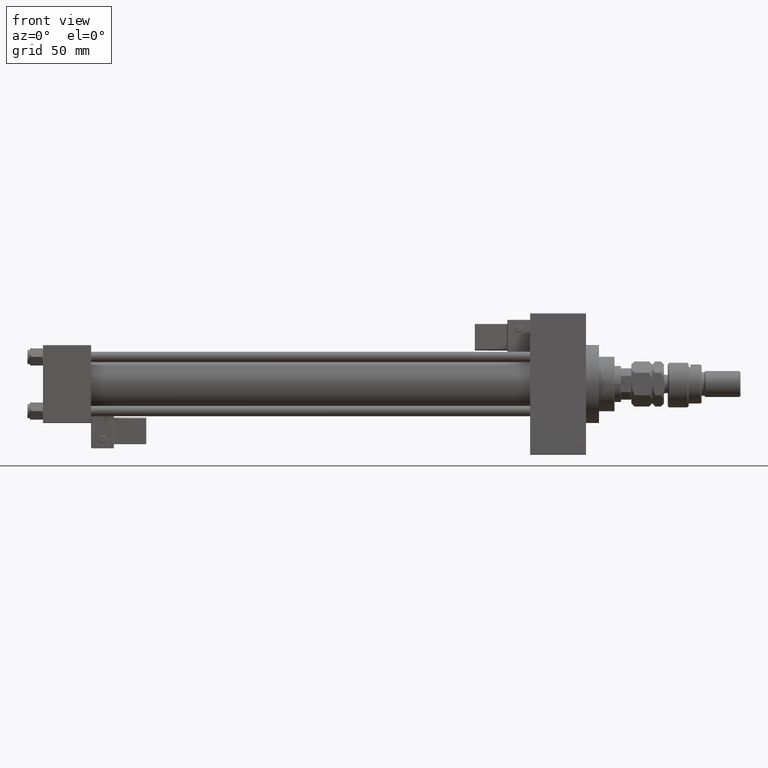
[diagram: clean part render]
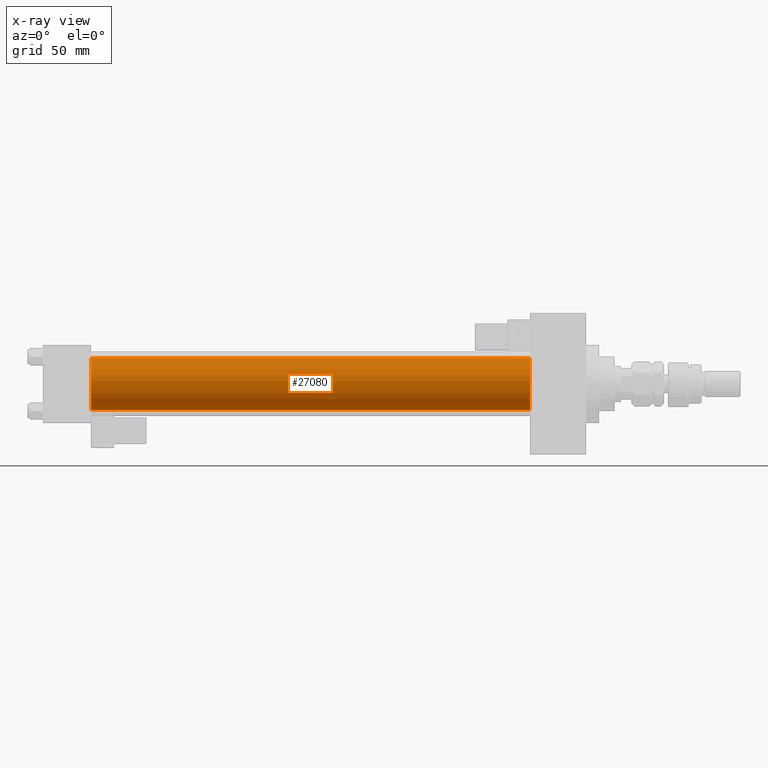
[diagram: x-ray — body ghosted, one internal face saturated and labeled with its STEP entity id]
A machine part, front view, then the same camera in x-ray: the body is ghosted and one INTERNAL B-rep face — a face not visible from any outside direction — is saturated and labeled: STEP entity #27080.
In plain terms, the highlighted cylindrical surface (edge-blend (fillet) strip) has radius 20 mm, axis along (-1, -0, -0).
Its self-contained STEP definition (entity closure, byte-faithful):
#415 = FACE_OUTER_BOUND ( 'NONE', #18806, .T. ) ;
#926 = CARTESIAN_POINT ( 'NONE',  ( 375.0000000000000000, -2.602085213965210642E-15, 0.000000000000000000 ) ) ;
#1138 = CARTESIAN_POINT ( 'NONE',  ( 375.0000000000000000, -2.602085213965210642E-15, 0.000000000000000000 ) ) ;
#2212 = AXIS2_PLACEMENT_3D ( 'NONE', #30229, #10032, #6019 ) ;
#4566 = AXIS2_PLACEMENT_3D ( 'NONE', #1138, #33298, #41535 ) ;
#5155 = DIRECTION ( 'NONE',  ( 0.000000000000000000, 0.000000000000000000, 1.000000000000000000 ) ) ;
#6019 = DIRECTION ( 'NONE',  ( 0.000000000000000000, 0.000000000000000000, -1.000000000000000000 ) ) ;
#7116 = VERTEX_POINT ( 'NONE', #46203 ) ;
#7144 = VECTOR ( 'NONE', #27718, 1000.000000000000000 ) ;
#7553 = CARTESIAN_POINT ( 'NONE',  ( 37.00000000000000000, -2.602085213965210642E-15, 20.00000000000000000 ) ) ;
#10032 = DIRECTION ( 'NONE',  ( 1.000000000000000000, 0.000000000000000000, 0.000000000000000000 ) ) ;
#11513 = EDGE_CURVE ( 'NONE', #7116, #22092, #44192, .T. ) ;
#12589 = VERTEX_POINT ( 'NONE', #25827 ) ;
#13336 = EDGE_CURVE ( 'NONE', #12589, #7116, #37758, .T. ) ;
#13391 = DIRECTION ( 'NONE',  ( -1.000000000000000000, -0.000000000000000000, -0.000000000000000000 ) ) ;
#13560 = ORIENTED_EDGE ( 'NONE', *, *, #11513, .T. ) ;
#15486 = VERTEX_POINT ( 'NONE', #7553 ) ;
#15749 = CARTESIAN_POINT ( 'NONE',  ( 375.0000000000000000, -1.527916156705042519E-16, -20.00000000000000000 ) ) ;
#15810 = DIRECTION ( 'NONE',  ( -1.000000000000000000, -0.000000000000000000, -0.000000000000000000 ) ) ;
#18743 = EDGE_CURVE ( 'NONE', #15486, #22092, #29343, .T. ) ;
#18806 = EDGE_LOOP ( 'NONE', ( #47403, #13560, #24048, #23711 ) ) ;
#22092 = VERTEX_POINT ( 'NONE', #23249 ) ;
#23249 = CARTESIAN_POINT ( 'NONE',  ( 37.00000000000000000, -1.527916156705042519E-16, -20.00000000000000000 ) ) ;
#23711 = ORIENTED_EDGE ( 'NONE', *, *, #51796, .F. ) ;
#23788 = CARTESIAN_POINT ( 'NONE',  ( 375.0000000000000000, -2.602085213965210642E-15, 20.00000000000000000 ) ) ;
#24048 = ORIENTED_EDGE ( 'NONE', *, *, #18743, .F. ) ;
#25120 = CYLINDRICAL_SURFACE ( 'NONE', #45631, 20.00000000000000000 ) ;
#25827 = CARTESIAN_POINT ( 'NONE',  ( 375.0000000000000000, -2.602085213965210642E-15, 20.00000000000000000 ) ) ;
#27080 = ADVANCED_FACE ( 'NONE', ( #415 ), #25120, .F. ) ;
#27718 = DIRECTION ( 'NONE',  ( -1.000000000000000000, -0.000000000000000000, -0.000000000000000000 ) ) ;
#29343 = CIRCLE ( 'NONE', #2212, 20.00000000000000000 ) ;
#30229 = CARTESIAN_POINT ( 'NONE',  ( 37.00000000000000000, -2.602085213965210642E-15, 0.000000000000000000 ) ) ;
#33298 = DIRECTION ( 'NONE',  ( 1.000000000000000000, 0.000000000000000000, 0.000000000000000000 ) ) ;
#37758 = CIRCLE ( 'NONE', #4566, 20.00000000000000000 ) ;
#41535 = DIRECTION ( 'NONE',  ( 0.000000000000000000, 0.000000000000000000, -1.000000000000000000 ) ) ;
#43641 = VECTOR ( 'NONE', #15810, 1000.000000000000000 ) ;
#44192 = LINE ( 'NONE', #15749, #7144 ) ;
#45631 = AXIS2_PLACEMENT_3D ( 'NONE', #926, #13391, #5155 ) ;
#46203 = CARTESIAN_POINT ( 'NONE',  ( 375.0000000000000000, -1.527916156705042519E-16, -20.00000000000000000 ) ) ;
#47403 = ORIENTED_EDGE ( 'NONE', *, *, #13336, .T. ) ;
#51796 = EDGE_CURVE ( 'NONE', #12589, #15486, #51972, .T. ) ;
#51972 = LINE ( 'NONE', #23788, #43641 ) ;